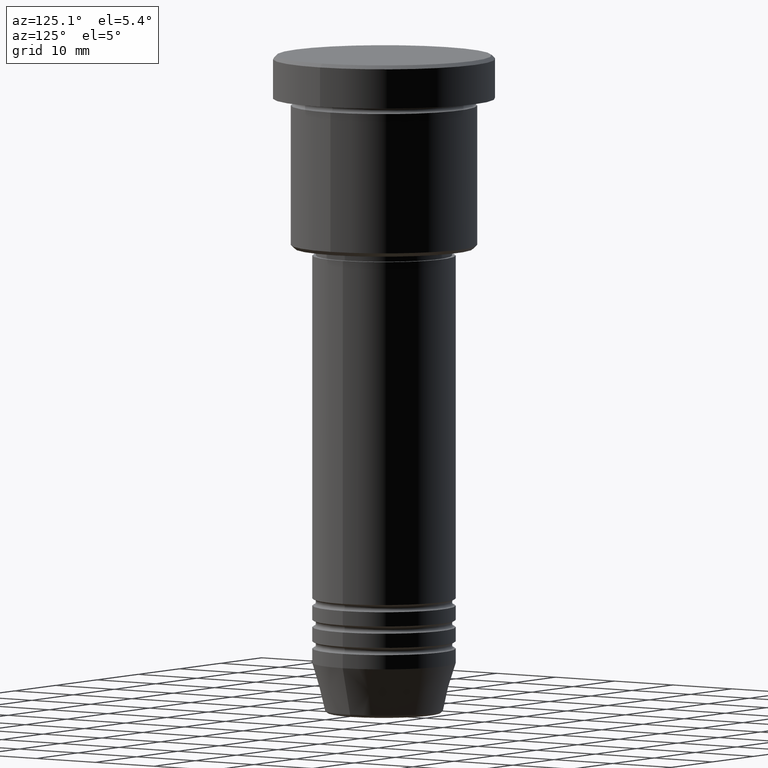
[diagram: clean part render]
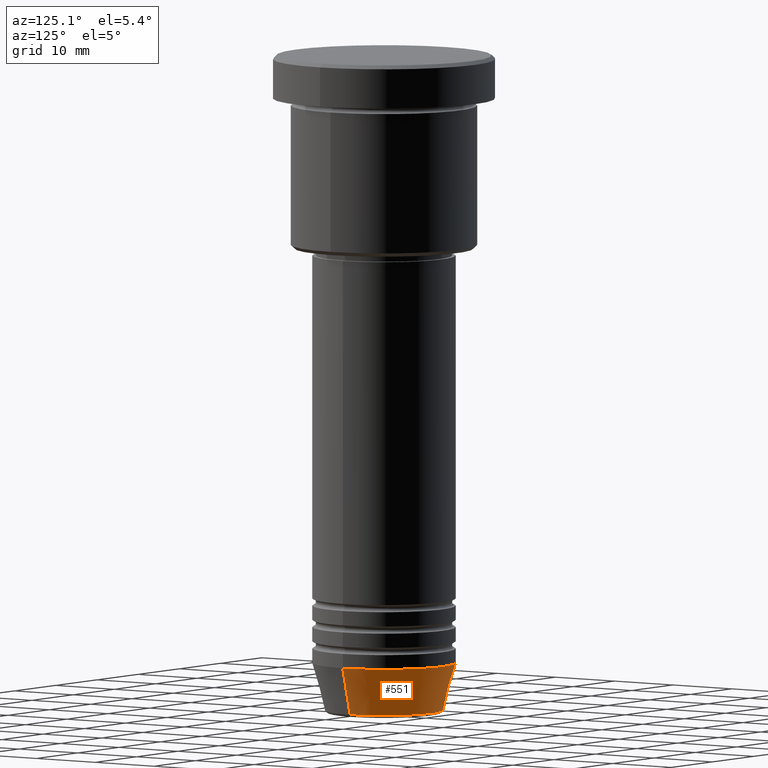
[diagram: same view with one face highlighted and labeled with its STEP entity id]
A machine part, auxiliary view. The second image highlights one B-rep face of the part: STEP entity #551.
In plain terms, the highlighted conical surface has half-angle 15 deg.
Its self-contained STEP definition (entity closure, byte-faithful):
#126 = EDGE_CURVE ( 'NONE', #745, #229, #709, .T. ) ;
#132 = DIRECTION ( 'NONE',  ( -0.000000000000000000, -0.000000000000000000, 1.000000000000000000 ) ) ;
#150 = DIRECTION ( 'NONE',  ( 1.000000000000000000, 0.000000000000000000, 0.000000000000000000 ) ) ;
#168 = CONICAL_SURFACE ( 'NONE', #549, 10.00000000000000000, 0.2617993877991500740 ) ;
#177 = ORIENTED_EDGE ( 'NONE', *, *, #126, .T. ) ;
#229 = VERTEX_POINT ( 'NONE', #430 ) ;
#239 = CARTESIAN_POINT ( 'NONE',  ( 0.000000000000000000, 0.000000000000000000, -84.99999999999998579 ) ) ;
#258 = ORIENTED_EDGE ( 'NONE', *, *, #468, .F. ) ;
#318 = DIRECTION ( 'NONE',  ( 1.000000000000000000, 0.000000000000000000, 0.000000000000000000 ) ) ;
#338 = VECTOR ( 'NONE', #567, 1000.000000000000000 ) ;
#371 = CARTESIAN_POINT ( 'NONE',  ( 10.00000000000000000, 0.000000000000000000, -84.99999999999998579 ) ) ;
#372 = VERTEX_POINT ( 'NONE', #1010 ) ;
#411 = ORIENTED_EDGE ( 'NONE', *, *, #1039, .T. ) ;
#424 = VECTOR ( 'NONE', #1159, 1000.000000000000000 ) ;
#426 = CARTESIAN_POINT ( 'NONE',  ( 0.000000000000000000, 0.000000000000000000, -91.62940952255125637 ) ) ;
#430 = CARTESIAN_POINT ( 'NONE',  ( -8.223655072137187716, 1.115877042642911856E-15, -91.62940952255125637 ) ) ;
#468 = EDGE_CURVE ( 'NONE', #745, #372, #917, .T. ) ;
#529 = VERTEX_POINT ( 'NONE', #673 ) ;
#549 = AXIS2_PLACEMENT_3D ( 'NONE', #239, #132, #318 ) ;
#551 = ADVANCED_FACE ( 'NONE', ( #1034 ), #168, .T. ) ;
#566 = AXIS2_PLACEMENT_3D ( 'NONE', #426, #690, #150 ) ;
#567 = DIRECTION ( 'NONE',  ( 0.2588190451025213501, 0.000000000000000000, 0.9659258262890680902 ) ) ;
#570 = CARTESIAN_POINT ( 'NONE',  ( -10.00000000000000000, 1.224646799147353256E-15, -84.99999999999998579 ) ) ;
#584 = CIRCLE ( 'NONE', #835, 10.00000000000000000 ) ;
#595 = EDGE_CURVE ( 'NONE', #372, #529, #584, .T. ) ;
#626 = CARTESIAN_POINT ( 'NONE',  ( 8.223655072137187716, 0.000000000000000000, -91.62940952255125637 ) ) ;
#673 = CARTESIAN_POINT ( 'NONE',  ( -10.00000000000000000, 1.224646799147353256E-15, -84.99999999999998579 ) ) ;
#690 = DIRECTION ( 'NONE',  ( -0.000000000000000000, -0.000000000000000000, 1.000000000000000000 ) ) ;
#709 = CIRCLE ( 'NONE', #566, 8.223655072137187716 ) ;
#745 = VERTEX_POINT ( 'NONE', #626 ) ;
#784 = DIRECTION ( 'NONE',  ( 1.000000000000000000, 0.000000000000000000, 0.000000000000000000 ) ) ;
#835 = AXIS2_PLACEMENT_3D ( 'NONE', #871, #940, #784 ) ;
#841 = EDGE_LOOP ( 'NONE', ( #177, #411, #1079, #258 ) ) ;
#871 = CARTESIAN_POINT ( 'NONE',  ( 0.000000000000000000, 0.000000000000000000, -84.99999999999998579 ) ) ;
#917 = LINE ( 'NONE', #371, #338 ) ;
#940 = DIRECTION ( 'NONE',  ( -0.000000000000000000, -0.000000000000000000, 1.000000000000000000 ) ) ;
#1010 = CARTESIAN_POINT ( 'NONE',  ( 10.00000000000000000, 0.000000000000000000, -84.99999999999998579 ) ) ;
#1034 = FACE_OUTER_BOUND ( 'NONE', #841, .T. ) ;
#1039 = EDGE_CURVE ( 'NONE', #229, #529, #1108, .T. ) ;
#1079 = ORIENTED_EDGE ( 'NONE', *, *, #595, .F. ) ;
#1108 = LINE ( 'NONE', #570, #424 ) ;
#1159 = DIRECTION ( 'NONE',  ( -0.2588190451025213501, 3.169619151431772337E-17, 0.9659258262890680902 ) ) ;